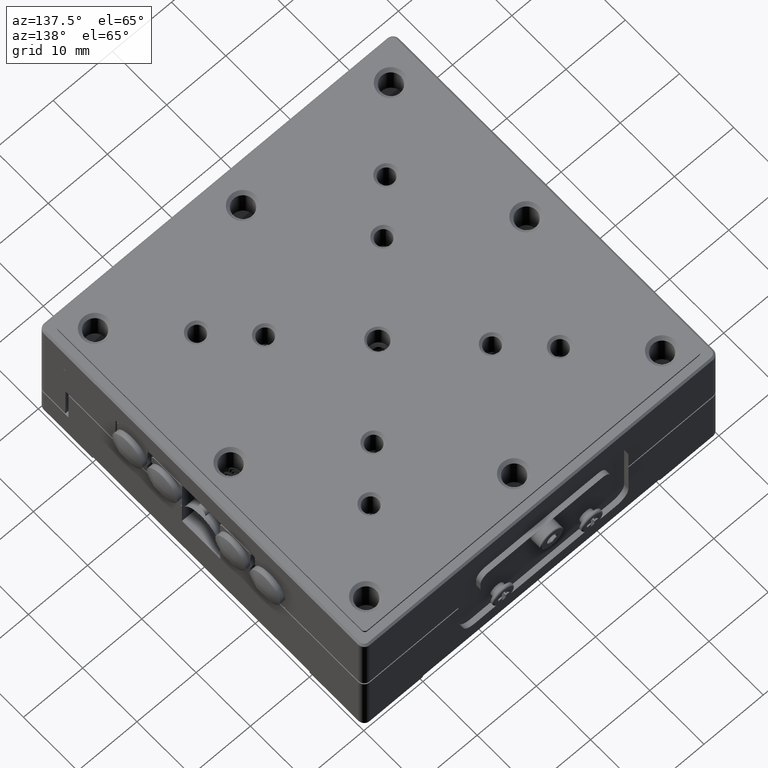
[diagram: clean part render]
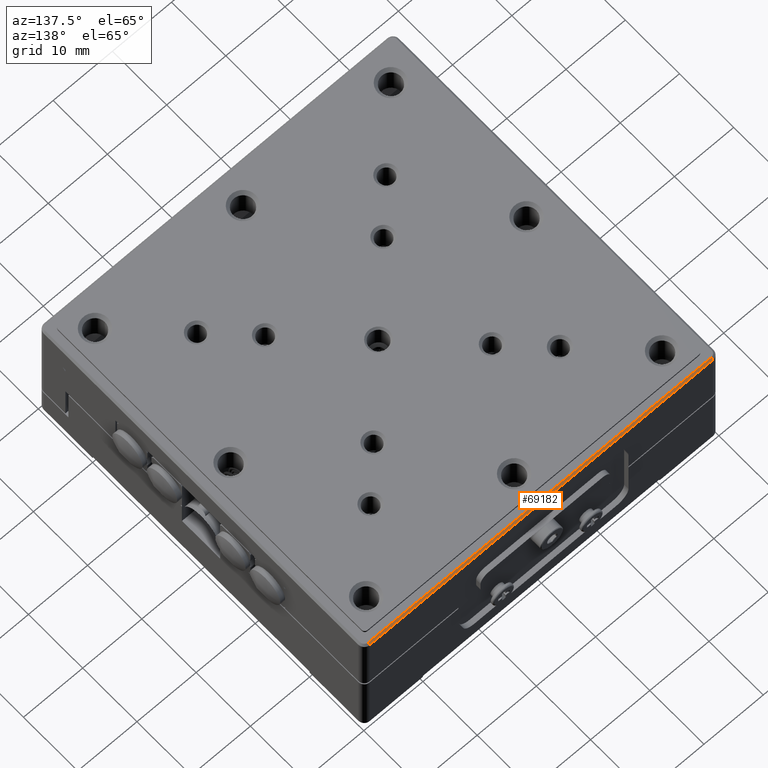
[diagram: same view with one face highlighted and labeled with its STEP entity id]
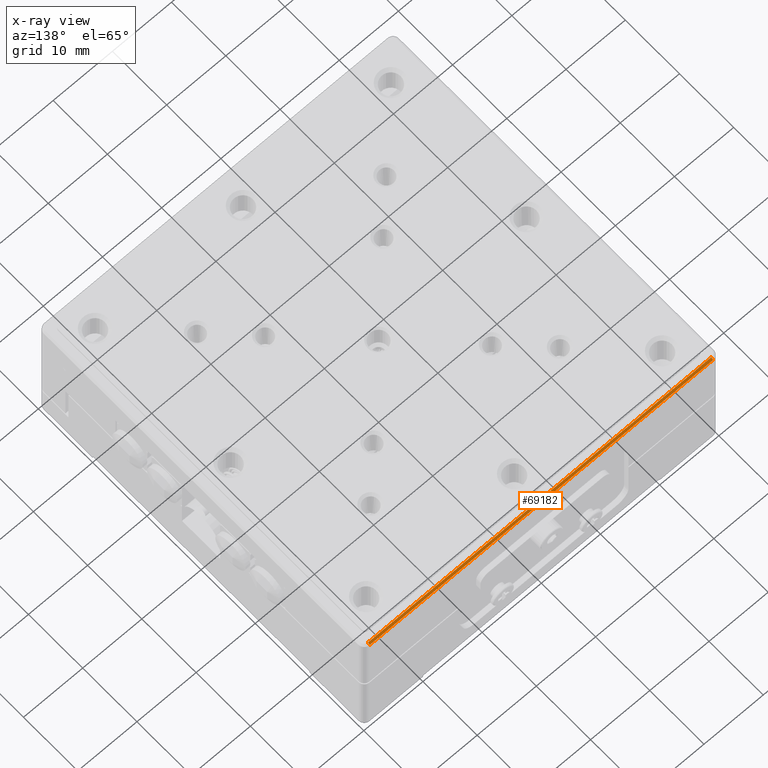
[diagram: x-ray of the same camera — body ghosted, the highlighted face saturated]
A machine part, auxiliary view. The second image highlights one B-rep face of the part: STEP entity #69182.
The next image is the same camera in x-ray: the body ghosted, the highlighted face saturated — about 0% of this face is hidden behind the body in this view.
In plain terms, the highlighted planar face has unit normal (0, 0.7071, 0.7071).
Its self-contained STEP definition (entity closure, byte-faithful):
#394 = VERTEX_POINT ( 'NONE', #81902 ) ;
#614 = EDGE_CURVE ( 'NONE', #23178, #394, #26880, .T. ) ;
#1213 = LINE ( 'NONE', #59102, #53589 ) ;
#1590 = ORIENTED_EDGE ( 'NONE', *, *, #71968, .F. ) ;
#2159 = VECTOR ( 'NONE', #49042, 1000.000000000000000 ) ;
#4503 = ORIENTED_EDGE ( 'NONE', *, *, #64318, .F. ) ;
#5216 = VERTEX_POINT ( 'NONE', #56456 ) ;
#7581 = ORIENTED_EDGE ( 'NONE', *, *, #614, .T. ) ;
#10947 = EDGE_LOOP ( 'NONE', ( #7581, #29500, #1590, #4503 ) ) ;
#11802 = DIRECTION ( 'NONE',  ( 0.000000000000000000, -0.7071067811865474617, 0.7071067811865474617 ) ) ;
#14328 = B_SPLINE_CURVE_WITH_KNOTS ( 'NONE', 3,
 ( #26067, #61866, #40766, #54992 ),
 .UNSPECIFIED., .F., .F.,
 ( 4, 4 ),
 ( 0.000000000000000000, 1.000000000000000000 ),
 .UNSPECIFIED. ) ;
#16112 = VERTEX_POINT ( 'NONE', #55671 ) ;
#19563 = DIRECTION ( 'NONE',  ( -0.000000000000000000, 0.7071067811865474617, -0.7071067811865474617 ) ) ;
#23178 = VERTEX_POINT ( 'NONE', #96547 ) ;
#26067 = CARTESIAN_POINT ( 'NONE',  ( -29.00000000000000000, 29.69999999831422599, 11.30000000176778485 ) ) ;
#26880 = LINE ( 'NONE', #41631, #49424 ) ;
#29500 = ORIENTED_EDGE ( 'NONE', *, *, #92766, .T. ) ;
#35279 = LINE ( 'NONE', #65199, #2159 ) ;
#40260 = FACE_OUTER_BOUND ( 'NONE', #10947, .T. ) ;
#40766 = CARTESIAN_POINT ( 'NONE',  ( -29.00000001116333692, 29.89999999755778859, 11.10000000238949092 ) ) ;
#41631 = CARTESIAN_POINT ( 'NONE',  ( 29.00000001839001840, 29.85000000000000142, 11.15000000000000036 ) ) ;
#49042 = DIRECTION ( 'NONE',  ( -1.000000000000000000, -0.000000000000000000, 0.000000000000000000 ) ) ;
#49424 = VECTOR ( 'NONE', #19563, 1000.000000000000114 ) ;
#52233 = DIRECTION ( 'NONE',  ( -1.000000000000000000, -0.000000000000000000, 0.000000000000000000 ) ) ;
#53589 = VECTOR ( 'NONE', #52233, 1000.000000000000000 ) ;
#54992 = CARTESIAN_POINT ( 'NONE',  ( -29.00000001970001051, 29.99999999726600564, 11.00000000360892649 ) ) ;
#55671 = CARTESIAN_POINT ( 'NONE',  ( -29.00000001970001051, 29.99999999726600564, 11.00000000360892649 ) ) ;
#56395 = DIRECTION ( 'NONE',  ( 0.000000000000000000, 0.7071067811865475727, 0.7071067811865475727 ) ) ;
#56456 = CARTESIAN_POINT ( 'NONE',  ( -29.00000000000000000, 29.69999999831422599, 11.30000000176778485 ) ) ;
#57349 = CARTESIAN_POINT ( 'NONE',  ( 0.000000000000000000, 29.85000000000000142, 11.15000000000000036 ) ) ;
#59102 = CARTESIAN_POINT ( 'NONE',  ( 0.000000000000000000, 29.69999999663000168, 11.30000000000000071 ) ) ;
#61866 = CARTESIAN_POINT ( 'NONE',  ( -29.00000000459666794, 29.79999999878268113, 11.20000000116454153 ) ) ;
#64318 = EDGE_CURVE ( 'NONE', #23178, #5216, #1213, .T. ) ;
#65199 = CARTESIAN_POINT ( 'NONE',  ( 0.000000000000000000, 29.99999999638000148, 11.00000000362000030 ) ) ;
#69182 = ADVANCED_FACE ( 'NONE', ( #40260 ), #93657, .T. ) ;
#71968 = EDGE_CURVE ( 'NONE', #5216, #16112, #14328, .T. ) ;
#77385 = AXIS2_PLACEMENT_3D ( 'NONE', #57349, #56395, #11802 ) ;
#81902 = CARTESIAN_POINT ( 'NONE',  ( 29.00000001904501445, 29.99999999723287303, 11.00000000364472896 ) ) ;
#92766 = EDGE_CURVE ( 'NONE', #394, #16112, #35279, .T. ) ;
#93657 = PLANE ( 'NONE',  #77385 ) ;
#96547 = CARTESIAN_POINT ( 'NONE',  ( 29.00000000919500920, 29.69999999705125049, 11.30000000207252953 ) ) ;